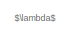
[diagram: root canvas - part 1/5, top left region]
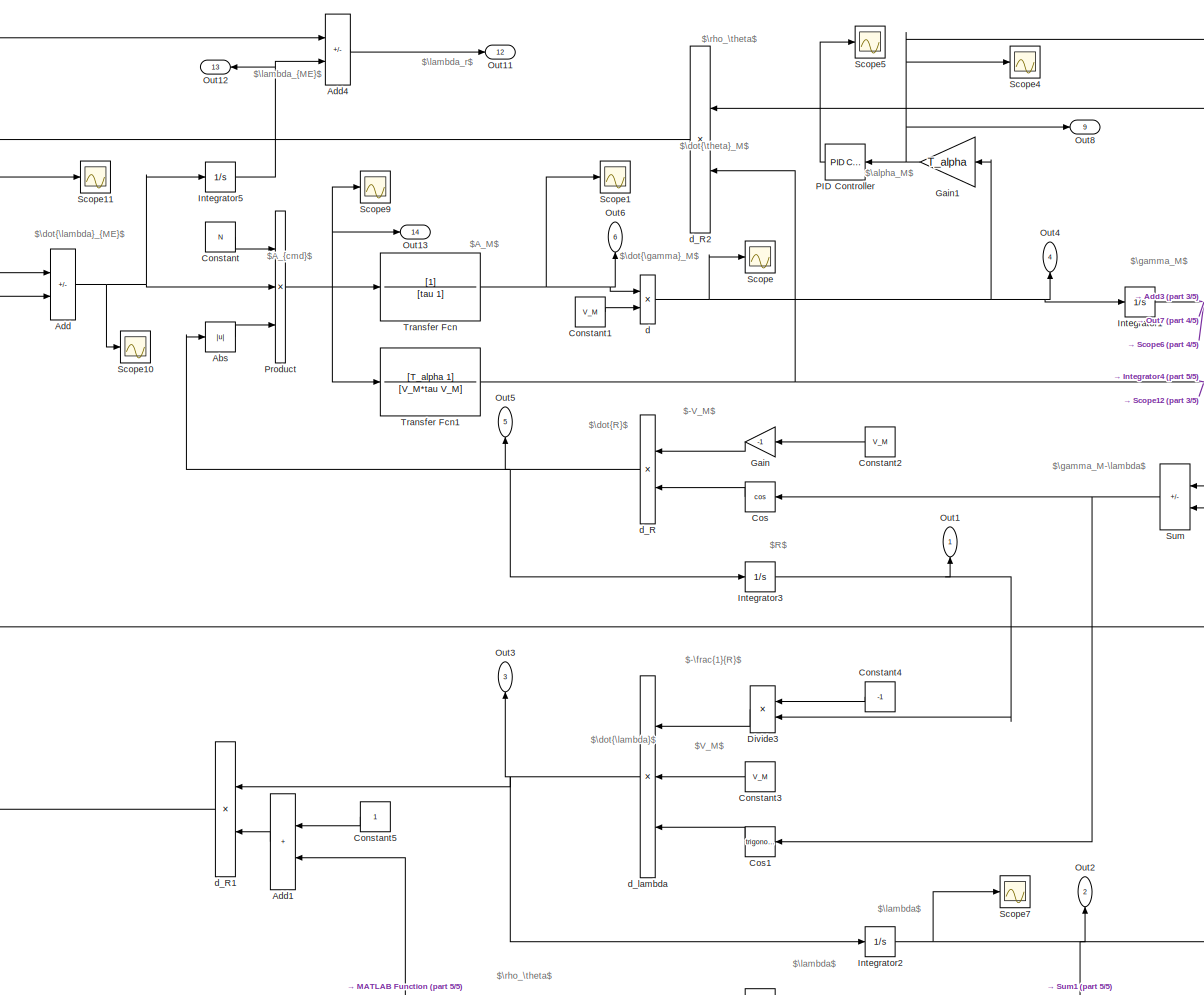
[diagram: root canvas - part 2/5, center side, full height]
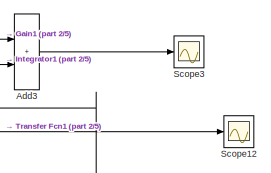
[diagram: root canvas - part 3/5, top right region]
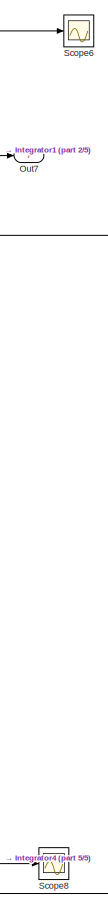
[diagram: root canvas - part 4/5, middle right region]
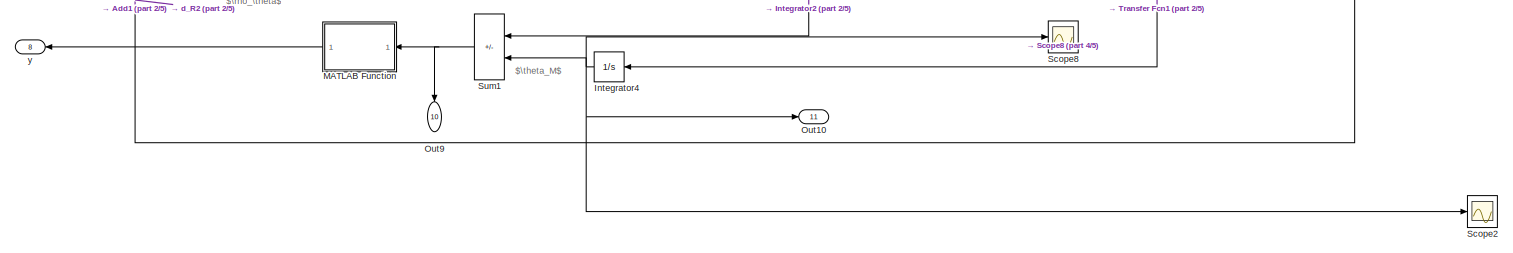
[diagram: root canvas - part 5/5, full width, bottom band]
MODEL slx_e7008b7517c2
KIND model
CONFIG AbsTol = auto
CONFIG EnableMultiTasking = off
CONFIG FixedStep = 0.001
CONFIG MaxStep = auto
CONFIG MinStep = auto
CONFIG RelTol = 1e-3
CONFIG SampleTimeConstraint = Unconstrained
CONFIG Solver = ode4
CONFIG SolverName = ode4
CONFIG StartTime = 0.0
CONFIG StopTime = 20
BLOCK [Abs] Abs
  SaturateOnIntegerOverflow = off
BLOCK [Sum] Add
  IconShape = rectangular
  Inputs = -+
  Ports = [2, 1]
BLOCK [Sum] Add1
  IconShape = rectangular
  NameLocation = top
  Ports = [2, 1]
BLOCK [Sum] Add3
  IconShape = rectangular
  Ports = [2, 1]
BLOCK [Sum] Add4
  IconShape = rectangular
  Inputs = -+
  Ports = [2, 1]
BLOCK [Constant] Constant
  Value = N
BLOCK [Constant] Constant1
  Value = V_M
BLOCK [Constant] Constant2
  NameLocation = top
  Value = V_M
BLOCK [Constant] Constant3
  NameLocation = top
  Value = V_M
BLOCK [Constant] Constant4
  NameLocation = top
  Value = -1
BLOCK [Constant] Constant5
  NameLocation = top
BLOCK [Trigonometry] Cos
  NameLocation = top
  Operator = cos
  Ports = [1, 1]
BLOCK [Trigonometry] Cos1
  NameLocation = top
  Ports = [1, 1]
BLOCK [Product] Divide3
  Inputs = */
  NameLocation = top
  Ports = [2, 1]
BLOCK [Gain] Gain
  Gain = -1
  NameLocation = top
BLOCK [Gain] Gain1
  Gain = T_alpha
  NameLocation = top
BLOCK [Integrator] Integrator1
  Ports = [1, 1]
BLOCK [Integrator] Integrator2
  InitialCondition = 0.0997
  Ports = [1, 1]
BLOCK [Integrator] Integrator3
  InitialCondition = 10050
  Ports = [1, 1]
BLOCK [Integrator] Integrator4
  NameLocation = top
  Ports = [1, 1]
BLOCK [Integrator] Integrator5
  InitialCondition = 0.1021925
  Ports = [1, 1]
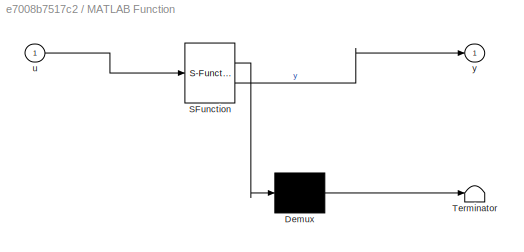
BLOCK [SubSystem] MATLAB Function
  ErrorFcn = Stateflow.Translate.translate
  NameLocation = top
  PermitHierarchicalResolution = ExplicitOnly
  Ports = [1, 1]
  RequestExecContextInheritance = off
  SFBlockType = MATLAB Function
  TreatAsAtomicUnit = on
BLOCK [Demux] MATLAB Function/ Demux 
  Outputs = 1
  Ports = [1, 1]
BLOCK [S-Function] MATLAB Function/ SFunction 
  EnableBusSupport = on
  FunctionName = sf_sfun
  PortCounts = [1 2]
  Ports = [1, 2]
  SFcnIsStateOwnerBlock = off
  SFunctionDeploymentMode = off
  Tag = Stateflow S-Function 2
BLOCK [Terminator] MATLAB Function/ Terminator 
BLOCK [Inport] MATLAB Function/u
BLOCK [Outport] MATLAB Function/y
BLOCK [Outport] Out1
  NameLocation = right
BLOCK [Outport] Out10
  Port = 11
BLOCK [Outport] Out11
  Port = 12
BLOCK [Outport] Out12
  NameLocation = top
  Port = 13
BLOCK [Outport] Out13
  Port = 14
BLOCK [Outport] Out2
  NameLocation = right
  Port = 2
BLOCK [Outport] Out3
  NameLocation = right
  Port = 3
BLOCK [Outport] Out4
  NameLocation = right
  Port = 4
BLOCK [Outport] Out5
  NameLocation = right
  Port = 5
BLOCK [Outport] Out6
  NameLocation = right
  Port = 6
BLOCK [Outport] Out7
  Port = 7
BLOCK [Outport] Out8
  Port = 9
BLOCK [Outport] Out9
  NameLocation = left
  Port = 10
BLOCK [Reference] PID Controller  REF=simulink/Continuous/PID Controller
  Ports = [1, 1]
  SourceBlock = simulink/Continuous/PID Controller
  SourceProductBaseCode = SL
  SourceType = PID 1dof
BLOCK [Product] Product
  Inputs = 3
  Ports = [3, 1]
BLOCK [Scope] Scope
  Floating = off
  NumInputPorts = 1
  Ports = [1]
  ScopeSpecificationString = Simulink.scopes.TimeScopeBlockCfg('CurrentConfiguration', extmgr.ConfigurationSet(extmgr.Configuration('Core','General UI',true),extmgr.Configuration('Core','Source UI',true),extmgr.Configuration('Sources','WiredSimulink',true),extmgr.Configuration('Visuals','Time Domain',true,'SerializedDisplays',{struct('MinYLimReal','-0.00223','MaxYLimReal','0.01997','YLabelReal','','MinYLimMag','0.00000','MaxY...<+1353ch>
BLOCK [Scope] Scope1
  Floating = off
  NumInputPorts = 1
  Ports = [1]
  ScopeSpecificationString = Simulink.scopes.TimeScopeBlockCfg('CurrentConfiguration', extmgr.ConfigurationSet(extmgr.Configuration('Core','General UI',true),extmgr.Configuration('Core','Source UI',true),extmgr.Configuration('Sources','WiredSimulink',true,'DataLoggingVariableName','ScopeData1'),extmgr.Configuration('Visuals','Time Domain',true,'SerializedDisplays',{struct('MinYLimReal','-2.69952','MaxYLimReal','16.96596','YLa...<+1423ch>
BLOCK [Scope] Scope10
  Floating = off
  NumInputPorts = 1
  Ports = [1]
  ScopeSpecificationString = Simulink.scopes.TimeScopeBlockCfg('CurrentConfiguration', extmgr.ConfigurationSet(extmgr.Configuration('Core','General UI',true),extmgr.Configuration('Core','Source UI',true),extmgr.Configuration('Sources','WiredSimulink',true,'DataLoggingVariableName','ScopeData2'),extmgr.Configuration('Visuals','Time Domain',true,'SerializedDisplays',{struct('MinYLimReal','-0.00064','MaxYLimReal','0.00571','YLab...<+1394ch>
BLOCK [Scope] Scope11
  Floating = off
  NumInputPorts = 1
  Ports = [1]
  ScopeSpecificationString = Simulink.scopes.TimeScopeBlockCfg('CurrentConfiguration', extmgr.ConfigurationSet(extmgr.Configuration('Core','General UI',true),extmgr.Configuration('Core','Source UI',true),extmgr.Configuration('Sources','WiredSimulink',true,'DataLoggingVariableName','ScopeData3'),extmgr.Configuration('Visuals','Time Domain',true,'SerializedDisplays',{struct('MinYLimReal','-0.00031','MaxYLimReal','0.00279','YLab...<+1395ch>
BLOCK [Scope] Scope12
  Floating = off
  NumInputPorts = 1
  Ports = [1]
  ScopeSpecificationString = Simulink.scopes.TimeScopeBlockCfg('CurrentConfiguration', extmgr.ConfigurationSet(extmgr.Configuration('Core','General UI',true),extmgr.Configuration('Core','Source UI',true),extmgr.Configuration('Sources','WiredSimulink',true,'DataLoggingVariableName','ScopeData4'),extmgr.Configuration('Visuals','Time Domain',true,'SerializedDisplays',{struct('MinYLimReal','-0.0125','MaxYLimReal','0.11147','YLabe...<+1393ch>
BLOCK [Scope] Scope2
  Floating = off
  NumInputPorts = 1
  Ports = [1]
  ScopeSpecificationString = Simulink.scopes.TimeScopeBlockCfg('CurrentConfiguration', extmgr.ConfigurationSet(extmgr.Configuration('Core','General UI',true),extmgr.Configuration('Core','Source UI',true),extmgr.Configuration('Sources','WiredSimulink',true,'DataLoggingVariableName','ScopeData2'),extmgr.Configuration('Visuals','Time Domain',true,'SerializedDisplays',{struct('MinYLimReal','-0.01627','MaxYLimReal','0.15346','YLab...<+1402ch>
BLOCK [Scope] Scope3
  Floating = off
  NumInputPorts = 1
  Ports = [1]
  ScopeSpecificationString = Simulink.scopes.TimeScopeBlockCfg('CurrentConfiguration', extmgr.ConfigurationSet(extmgr.Configuration('Core','General UI',true),extmgr.Configuration('Core','Source UI',true),extmgr.Configuration('Sources','WiredSimulink',true,'DataLoggingVariableName','ScopeData3'),extmgr.Configuration('Visuals','Time Domain',true,'SerializedDisplays',{struct('MinYLimReal','-0.01706','MaxYLimReal','0.15352','YLab...<+1395ch>
BLOCK [Scope] Scope4
  Floating = off
  NumInputPorts = 1
  Ports = [1]
  ScopeSpecificationString = Simulink.scopes.TimeScopeBlockCfg('CurrentConfiguration', extmgr.ConfigurationSet(extmgr.Configuration('Core','General UI',true),extmgr.Configuration('Core','Source UI',true),extmgr.Configuration('Sources','WiredSimulink',true,'DataLoggingVariableName','ScopeData4'),extmgr.Configuration('Visuals','Time Domain',true,'SerializedDisplays',{struct('MinYLimReal','-0.00223','MaxYLimReal','0.01997','YLab...<+1396ch>
BLOCK [Scope] Scope5
  Floating = off
  NumInputPorts = 1
  Ports = [1]
  ScopeSpecificationString = Simulink.scopes.TimeScopeBlockCfg('CurrentConfiguration', extmgr.ConfigurationSet(extmgr.Configuration('Core','General UI',true),extmgr.Configuration('Core','Source UI',true),extmgr.Configuration('Sources','WiredSimulink',true,'DataLoggingVariableName','ScopeData5'),extmgr.Configuration('Visuals','Time Domain',true,'SerializedDisplays',{struct('MinYLimReal','-0.01407','MaxYLimReal','0.1111','YLabe...<+1416ch>
BLOCK [Scope] Scope6
  Floating = off
  NumInputPorts = 1
  Ports = [1]
  ScopeSpecificationString = Simulink.scopes.TimeScopeBlockCfg('CurrentConfiguration', extmgr.ConfigurationSet(extmgr.Configuration('Core','General UI',true),extmgr.Configuration('Core','Source UI',true),extmgr.Configuration('Sources','WiredSimulink',true,'DataLoggingVariableName','ScopeData6'),extmgr.Configuration('Visuals','Time Domain',true,'SerializedDisplays',{struct('MinYLimReal','-0.01704','MaxYLimReal','0.15338','YLab...<+1398ch>
BLOCK [Scope] Scope7
  Floating = off
  NumInputPorts = 1
  Ports = [1]
  ScopeSpecificationString = Simulink.scopes.TimeScopeBlockCfg('CurrentConfiguration', extmgr.ConfigurationSet(extmgr.Configuration('Core','General UI',true),extmgr.Configuration('Core','Source UI',true),extmgr.Configuration('Sources','WiredSimulink',true,'DataLoggingVariableName','ScopeData7'),extmgr.Configuration('Visuals','Time Domain',true,'SerializedDisplays',{struct('MinYLimReal','0.09512','MaxYLimReal','0.14092','YLabe...<+1396ch>
BLOCK [Scope] Scope8
  Floating = off
  NumInputPorts = 1
  Ports = [1]
  ScopeSpecificationString = Simulink.scopes.TimeScopeBlockCfg('CurrentConfiguration', extmgr.ConfigurationSet(extmgr.Configuration('Core','General UI',true),extmgr.Configuration('Core','Source UI',true),extmgr.Configuration('Sources','WiredSimulink',true,'DataLoggingVariableName','ScopeData8'),extmgr.Configuration('Visuals','Time Domain',true,'SerializedDisplays',{struct('MinYLimReal','-0.01706','MaxYLimReal','0.15355','YLab...<+1400ch>
BLOCK [Scope] Scope9
  Floating = off
  NumInputPorts = 1
  Ports = [1]
  ScopeSpecificationString = Simulink.scopes.TimeScopeBlockCfg('CurrentConfiguration', extmgr.ConfigurationSet(extmgr.Configuration('Core','General UI',true),extmgr.Configuration('Core','Source UI',true),extmgr.Configuration('Sources','WiredSimulink',true,'DataLoggingVariableName','ScopeData1'),extmgr.Configuration('Visuals','Time Domain',true,'SerializedDisplays',{struct('MinYLimReal','-1.27013','MaxYLimReal','11.36463','YLa...<+1400ch>
BLOCK [Sum] Sum
  IconShape = rectangular
  Inputs = +|-
  NameLocation = top
  Ports = [2, 1]
BLOCK [Sum] Sum1
  IconShape = rectangular
  Inputs = +|-
  NameLocation = top
  Ports = [2, 1]
BLOCK [TransferFcn] Transfer Fcn
  Denominator = [tau 1]
BLOCK [TransferFcn] Transfer Fcn1
  Denominator = [V_M*tau V_M]
  Numerator = [T_alpha 1]
BLOCK [Product] d
  Inputs = */
  NameLocation = right
  Ports = [2, 1]
BLOCK [Product] d_R
  Inputs = **
  NameLocation = top
  Ports = [2, 1]
BLOCK [Product] d_R1
  Inputs = **
  NameLocation = top
  Ports = [2, 1]
BLOCK [Product] d_R2
  Inputs = **
  NameLocation = top
  Ports = [2, 1]
BLOCK [Product] d_lambda
  Inputs = ***
  NameLocation = top
  Ports = [3, 1]
BLOCK [Outport] y
  NameLocation = top
  Port = 8
ANNOTATION (root): $-V_M$
ANNOTATION (root): $-\frac{1}{R}$
ANNOTATION (root): $A_M$
ANNOTATION (root): $A_{cmd}$
ANNOTATION (root): $R$
ANNOTATION (root): $V_M$
ANNOTATION (root): $\dot{R}$
ANNOTATION (root): $\dot{\gamma}_M$
ANNOTATION (root): $\dot{\lambda}$
ANNOTATION (root): $\dot{\lambda}_{ME}$
ANNOTATION (root): $\gamma_M$
ANNOTATION (root): $\gamma_M-\lambda$
ANNOTATION (root): $\lambda$
ANNOTATION (root): $\rho_\theta$
ANNOTATION (root): $\theta_M$
ANNOTATION (root): $\alpha_M$
ANNOTATION (root): $\dot{\theta}_M$
ANNOTATION (root): $\lambda_r$
ANNOTATION (root): $\lambda_{ME}$
LINE Abs:1 -> Product:3
LINE Add1:1 -> d_R1:2
LINE Add3:1 -> Scope3:1
LINE Add4:1 -> Out11:1
NET Add:1 -> Integrator5:1, Product:2, Scope10:1
LINE Constant1:1 -> d:2
LINE Constant2:1 -> Gain:1
LINE Constant3:1 -> d_lambda:2
LINE Constant4:1 -> Divide3:1
LINE Constant5:1 -> Add1:1
LINE Constant:1 -> Product:1
LINE Cos1:1 -> d_lambda:3
LINE Cos:1 -> d_R:2
LINE Divide3:1 -> d_lambda:1
NET Gain1:1 -> Add3:1, Out8:1, PID Controller:1, Scope4:1
LINE Gain:1 -> d_R:1
NET Integrator1:1 -> Add3:2, Out7:1, Scope6:1, Sum:1
NET Integrator2:1 -> Add4:1, Out2:1, Scope7:1, Sum1:1, Sum:2
NET Integrator3:1 -> Divide3:2, Out1:1
NET Integrator4:1 -> Out10:1, Scope2:1, Scope8:1, Sum1:2
NET Integrator5:1 -> Add4:2, Out12:1
NET MATLAB Function:1 -> Add1:2, d_R2:1, y:1
LINE PID Controller:1 -> Scope5:1
NET Product:1 -> Out13:1, Scope9:1, Transfer Fcn1:1, Transfer Fcn:1
NET Sum1:1 -> MATLAB Function:1, Out9:1
NET Sum:1 -> Cos1:1, Cos:1
NET Transfer Fcn1:1 -> Integrator4:1, Scope12:1, d_R2:2
NET Transfer Fcn:1 -> Out6:1, Scope1:1, d:1
NET d:1 -> Gain1:1, Integrator1:1, Out4:1, Scope:1
LINE d_R1:1 -> Add:2
NET d_R2:1 -> Add:1, Scope11:1
NET d_R:1 -> Abs:1, Integrator3:1, Out5:1
NET d_lambda:1 -> Integrator2:1, Out3:1, d_R1:1
note: NET lines group one-source signal fan-out (src -> all destinations, sorted); 1:1 wires keep LINE
CHART MATLAB Function states=1 transitions=1
  STATE_LABEL 'eML_blk_kernel()'
  STATE_LABEL 'SCRIPT:\nfunction y = fcn(u)\n\n%%\nr=-0.5;\nzeta=4;\np=1;\n\nif u<0\n    a=exp(zeta*u);\n    b=zeta*sin(2*pi*u/p);\n    c=2*pi/p*cos(2*pi*u/p);\nelse\n    a=exp(-zeta*u);\n    b=-zeta*sin(2*pi*u/p);\n    c=2*pi/p*cos(2*pi*u/p);\nend\n\ny=r*a*(b+c);\ny=y/rad2deg(1);\n\n%%\n% y=0.025;\n% y=0.05;\n% y=-0.025;'
CHART  states=0 transitions=0
